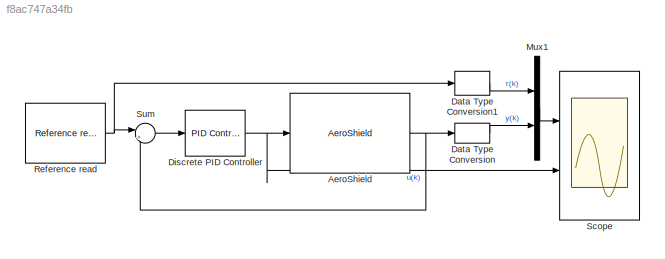
MODEL slx_f8ac747a34fb
KIND model
CONFIG AbsTol = auto
CONFIG EnableMultiTasking = off
CONFIG FixedStep = 0.005
CONFIG MaxStep = auto
CONFIG MinStep = auto
CONFIG RelTol = 1e-3
CONFIG SampleTimeConstraint = Unconstrained
CONFIG SolverName = FixedStepAuto
CONFIG StartTime = 0.0
CONFIG StopTime = Inf
BLOCK [Reference] AeroShield  REF=AeroLibrary/AeroShield
  Ports = [1, 1]
  SourceBlock = AeroLibrary/AeroShield
  SourceProductName = AeroShield Library
BLOCK [DataTypeConversion] Data Type Conversion
  OutDataTypeStr = int16
  RndMeth = Floor
  SaturateOnIntegerOverflow = off
BLOCK [DataTypeConversion] Data Type Conversion1
  OutDataTypeStr = int16
  RndMeth = Floor
  SaturateOnIntegerOverflow = off
BLOCK [Reference] Discrete PID Controller  REF=pid_lib/PID Controller
  Ports = [1, 1]
  SourceBlock = pid_lib/PID Controller
  SourceProductBaseCode = SL
  SourceType = PID 1dof
BLOCK [Mux] Mux1
  DisplayOption = bar
  Inputs = 2
  Ports = [2, 1]
BLOCK [Reference] Reference read  REF=AeroLibrary/Reference read
  Ports = [0, 1]
  SourceBlock = AeroLibrary/Reference read
  SourceProductName = AeroShield Library
BLOCK [Scope] Scope
  Floating = off
  NumInputPorts = 2
  Ports = [2]
  ScopeSpecificationString = Simulink.scopes.TimeScopeBlockCfg('CurrentConfiguration', extmgr.ConfigurationSet(extmgr.Configuration('Core','General UI',true,'FigureColor',[1 1 1]),extmgr.Configuration('Core','Source UI',true),extmgr.Configuration('Sources','WiredSimulink',true,'DataLogging',true,'DataLoggingSaveFormat','StructureWithTime'),extmgr.Configuration('Visuals','Time Domain',true,'SerializedDisplays',{struct('MinYLim...<+2536ch>
BLOCK [Sum] Sum
  Inputs = |+-
  Ports = [2, 1]
NET AeroShield:1 -> Data Type Conversion:1, Sum:2
LINE Data Type Conversion1:1 -> Mux1:1
LINE Data Type Conversion:1 -> Mux1:2
NET Discrete PID Controller:1 -> AeroShield:1, Scope:2
LINE Mux1:1 -> Scope:1
NET Reference read:1 -> Data Type Conversion1:1, Sum:1
LINE Sum:1 -> Discrete PID Controller:1
note: NET lines group one-source signal fan-out (src -> all destinations, sorted); 1:1 wires keep LINE
